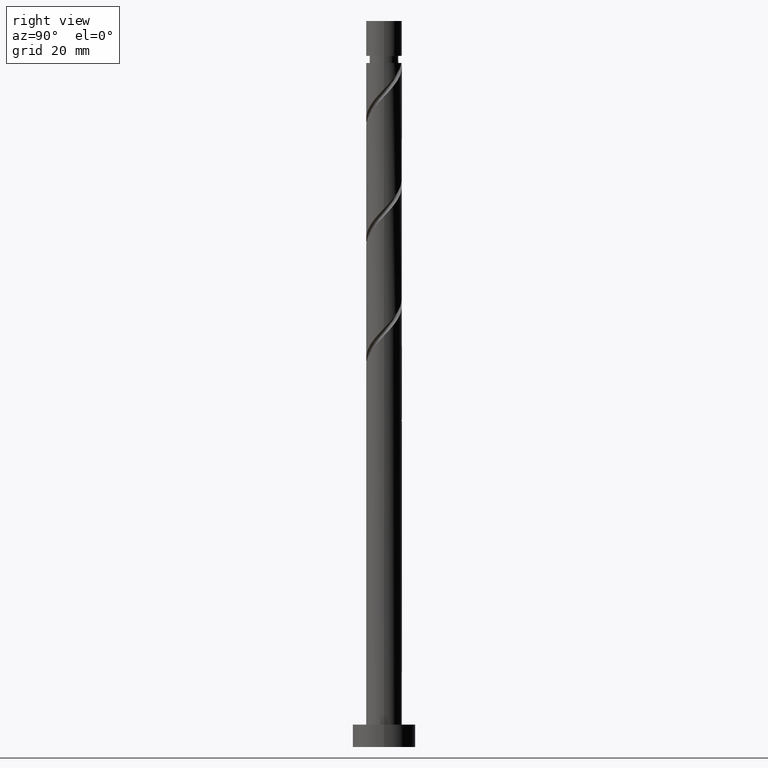
[diagram: clean part render]
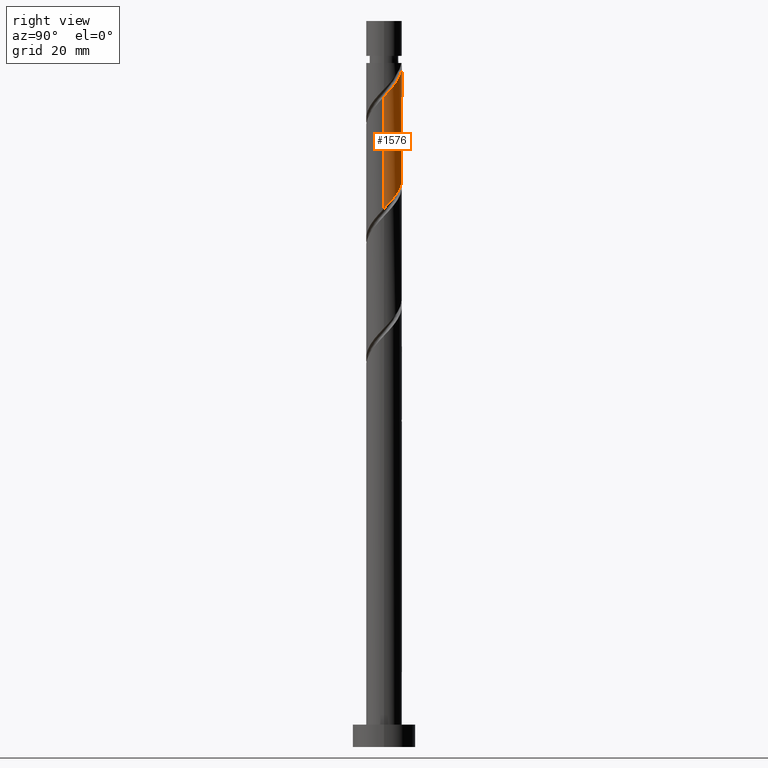
[diagram: same view with one face highlighted and labeled with its STEP entity id]
A machine part, right view. The second image highlights one B-rep face of the part: STEP entity #1576.
In plain terms, the highlighted cylindrical surface (edge-blend (fillet) strip) has radius 4 mm, axis along (-0, -0, -1).
Its self-contained STEP definition (entity closure, byte-faithful):
#4 = CARTESIAN_POINT ( 'NONE',  ( 1.868138386609203838, 3.536956172823910727, 124.7445681667448127 ) ) ;
#12 = VECTOR ( 'NONE', #80, 1000.000000000000000 ) ;
#32 = CARTESIAN_POINT ( 'NONE',  ( -1.985696539029934815, 3.519625607940455758, 128.9869924091690621 ) ) ;
#42 = CARTESIAN_POINT ( 'NONE',  ( -1.449682647155072557, 3.728058505782528620, 128.3809318031084672 ) ) ;
#46 = DIRECTION ( 'NONE',  ( -0.000000000000000000, -0.000000000000000000, -1.000000000000000000 ) ) ;
#57 = FACE_OUTER_BOUND ( 'NONE', #961, .T. ) ;
#80 = DIRECTION ( 'NONE',  ( -0.000000000000000000, -0.000000000000000000, -1.000000000000000000 ) ) ;
#126 = CARTESIAN_POINT ( 'NONE',  ( 2.788941361696811949, 2.867369191613931445, 123.5324469546236088 ) ) ;
#155 = CARTESIAN_POINT ( 'NONE',  ( -0.7959899496852959055, 3.920000000000002593, 152.6233560455327165 ) ) ;
#172 = CARTESIAN_POINT ( 'NONE',  ( -4.000000000000000888, 0.1151021060952892028, 133.3507125201153656 ) ) ;
#177 =( BOUNDED_CURVE ( )  B_SPLINE_CURVE ( 2, ( #581, #172, #1598, #963, #844, #591, #460, #1416, #760, #32, #42, #552, #980, #923, #540, #1157, #4, #258, #126, #551, #659, #1067, #680, #1089, #312 ),
 .UNSPECIFIED., .F., .T. ) 
 B_SPLINE_CURVE_WITH_KNOTS ( ( 3, 2, 2, 2, 2, 2, 2, 2, 2, 2, 2, 2, 3 ),
 ( 0.4295252162417513286, 0.4318181818181818232, 0.4431818181818181768, 0.4545454545454545303, 0.4659090909090908839, 0.4772727272727272929, 0.4886363636363636465, 0.5000000000000000000, 0.5113636363636363535, 0.5227272727272727071, 0.5340909090909090606, 0.5454545454545454142, 0.5545252162417512176 ),
 .UNSPECIFIED. ) 
 CURVE ( )  GEOMETRIC_REPRESENTATION_ITEM ( )  RATIONAL_B_SPLINE_CURVE ( ( 0.9061101570135567940, 0.9072237824201390133, 0.9090909090909164991, 0.8998376744372188485, 0.9090909090909164991, 0.8998376744372188485, 0.9090909090909164991, 0.8998376744372188485, 0.9090909090909164991, 0.8998376744372188485, 0.9090909090909164991, 0.8998376744372188485, 0.9090909090909164991, 0.8998376744372188485, 0.9090909090909164991, 0.8998376744372188485, 0.9090909090909164991, 0.8998376744372188485, 0.9090909090909164991, 0.8998376744372188485, 0.9090909090909164991, 0.8998376744372188485, 0.9090909090909164991, 0.9017048011079963343, 0.9061101570135567940 ) ) 
 REPRESENTATION_ITEM ( '' )  );
#221 = VERTEX_POINT ( 'NONE', #1068 ) ;
#257 = CARTESIAN_POINT ( 'NONE',  ( 3.766818871216639053, 1.345762085751509574, 146.5627499849266542 ) ) ;
#258 = CARTESIAN_POINT ( 'NONE',  ( 2.376675911072815062, 3.268358422650716744, 124.1385075606841895 ) ) ;
#266 = ORIENTED_EDGE ( 'NONE', *, *, #1626, .F. ) ;
#312 = CARTESIAN_POINT ( 'NONE',  ( 4.000000000000000888, -4.606700776676913527E-15, 120.1394771915002480 ) ) ;
#387 = ORIENTED_EDGE ( 'NONE', *, *, #895, .T. ) ;
#400 = CARTESIAN_POINT ( 'NONE',  ( 0.000000000000000000, 0.000000000000000000, 162.0000000000000000 ) ) ;
#404 = CARTESIAN_POINT ( 'NONE',  ( 4.000000000000005329, 0.1151021060952975711, 145.2293329042833818 ) ) ;
#415 = CARTESIAN_POINT ( 'NONE',  ( -0.2323790372250058855, 4.034446077002901809, 152.0172954394721501 ) ) ;
#448 = ORIENTED_EDGE ( 'NONE', *, *, #1382, .F. ) ;
#460 = CARTESIAN_POINT ( 'NONE',  ( -3.235091246491823558, 2.352484777181774511, 130.8051742273508751 ) ) ;
#524 = DIRECTION ( 'NONE',  ( -1.000000000000000000, 0.000000000000000000, 0.000000000000000000 ) ) ;
#540 = CARTESIAN_POINT ( 'NONE',  ( 0.7959899496852975709, 3.919999999999999929, 125.9566893788660309 ) ) ;
#551 = CARTESIAN_POINT ( 'NONE',  ( 3.201206812320808837, 2.466379960577145702, 122.9263863485629997 ) ) ;
#552 = CARTESIAN_POINT ( 'NONE',  ( -0.9136687552802111867, 3.936491403624602814, 127.7748711970478297 ) ) ;
#570 = LINE ( 'NONE', #1500, #12 ) ;
#578 = ORIENTED_EDGE ( 'NONE', *, *, #847, .F. ) ;
#581 = CARTESIAN_POINT ( 'NONE',  ( -4.000000000000000000, -1.824732125826569623E-15, 133.4728105248335908 ) ) ;
#591 = CARTESIAN_POINT ( 'NONE',  ( -3.573327494404164639, 1.887348876843108147, 131.4112348334114984 ) ) ;
#659 = CARTESIAN_POINT ( 'NONE',  ( 3.483800894132676351, 1.965485011400587290, 122.3203257425023764 ) ) ;
#680 = CARTESIAN_POINT ( 'NONE',  ( 3.896423597087600665, 0.9043689247530143360, 121.1082045303811725 ) ) ;
#709 = ORIENTED_EDGE ( 'NONE', *, *, #746, .T. ) ;
#746 = EDGE_CURVE ( 'NONE', #221, #1118, #1499, .T. ) ;
#760 = CARTESIAN_POINT ( 'NONE',  ( -2.441275768804708868, 3.168623142730448095, 129.5930530152296569 ) ) ;
#763 =( BOUNDED_CURVE ( )  B_SPLINE_CURVE ( 2, ( #1049, #404, #926, #1280, #257, #1288, #1017, #1363, #820, #1314, #1186, #1563, #1306, #415, #155 ),
 .UNSPECIFIED., .F., .T. ) 
 B_SPLINE_CURVE_WITH_KNOTS ( ( 3, 2, 2, 2, 2, 2, 2, 3 ),
 ( 0.6795252162417515507, 0.6818181818181818787, 0.6931818181818181213, 0.7045454545454545858, 0.7159090909090909394, 0.7272727272727274039, 0.7386363636363637575, 0.7500000000000001110 ),
 .UNSPECIFIED. ) 
 CURVE ( )  GEOMETRIC_REPRESENTATION_ITEM ( )  RATIONAL_B_SPLINE_CURVE ( ( 0.9061101570135624561, 0.9072237824201445644, 0.9090909090909219392, 0.8998376744372241776, 0.9090909090909219392, 0.8998376744372241776, 0.9090909090909219392, 0.8998376744372241776, 0.9090909090909219392, 0.8998376744372241776, 0.9090909090909219392, 0.8998376744372241776, 0.9090909090909219392, 0.8998376744372240665, 0.9090909090909220502 ) ) 
 REPRESENTATION_ITEM ( '' )  );
#800 = DIRECTION ( 'NONE',  ( -0.000000000000000000, -0.000000000000000000, -1.000000000000000000 ) ) ;
#820 = CARTESIAN_POINT ( 'NONE',  ( 2.441275768804711976, 3.168623142730452091, 148.9869924091690905 ) ) ;
#844 = CARTESIAN_POINT ( 'NONE',  ( -3.766818871216632836, 1.345762085751508463, 132.0172954394720932 ) ) ;
#847 = EDGE_CURVE ( 'NONE', #221, #1564, #763, .T. ) ;
#883 = CIRCLE ( 'NONE', #1353, 3.999999999999993339 ) ;
#894 = CYLINDRICAL_SURFACE ( 'NONE', #958, 4.000000000000000000 ) ;
#895 = EDGE_CURVE ( 'NONE', #1529, #1564, #883, .T. ) ;
#923 = CARTESIAN_POINT ( 'NONE',  ( 0.2323790372250010838, 4.034446077002895592, 126.5627499849266400 ) ) ;
#926 = CARTESIAN_POINT ( 'NONE',  ( 3.993381233129885466, 0.2300137536889530487, 145.3506287728054076 ) ) ;
#927 = DIRECTION ( 'NONE',  ( -1.000000000000000000, 0.000000000000000000, 0.000000000000000000 ) ) ;
#958 = AXIS2_PLACEMENT_3D ( 'NONE', #400, #800, #524 ) ;
#961 = EDGE_LOOP ( 'NONE', ( #578, #709, #448, #266, #387 ) ) ;
#963 = CARTESIAN_POINT ( 'NONE',  ( -3.960310248029102365, 0.8041752946599105556, 132.6233560455327449 ) ) ;
#978 = CARTESIAN_POINT ( 'NONE',  ( -4.000000000000000000, -1.824732125826569623E-15, 133.4728105248335908 ) ) ;
#980 = CARTESIAN_POINT ( 'NONE',  ( -0.3406448590276049404, 3.985468740313750313, 127.1688105909871922 ) ) ;
#1017 = CARTESIAN_POINT ( 'NONE',  ( 3.235091246491828887, 2.352484777181775399, 147.7748711970478723 ) ) ;
#1049 = CARTESIAN_POINT ( 'NONE',  ( 4.000000000000005329, 2.557616340297881178E-15, 145.1072348995651282 ) ) ;
#1066 = CARTESIAN_POINT ( 'NONE',  ( -0.7959899496852959055, 3.920000000000002593, 152.6233560455327165 ) ) ;
#1067 = CARTESIAN_POINT ( 'NONE',  ( 3.766394975944543866, 1.464590062224026212, 121.7142651364417958 ) ) ;
#1068 = CARTESIAN_POINT ( 'NONE',  ( 4.000000000000005329, 2.557616340297881178E-15, 145.1072348995651282 ) ) ;
#1089 = CARTESIAN_POINT ( 'NONE',  ( 4.000000000000000000, 0.4581157095404935209, 120.6254371444715758 ) ) ;
#1094 = DIRECTION ( 'NONE',  ( -0.000000000000000000, -0.000000000000000000, -1.000000000000000000 ) ) ;
#1118 = VERTEX_POINT ( 'NONE', #1506 ) ;
#1157 = CARTESIAN_POINT ( 'NONE',  ( 1.359600862145592615, 3.805553922997103378, 125.3506287728054218 ) ) ;
#1186 = CARTESIAN_POINT ( 'NONE',  ( 1.449682647155074333, 3.728058505782534393, 150.1991136212903086 ) ) ;
#1218 = VECTOR ( 'NONE', #1094, 1000.000000000000000 ) ;
#1245 = CARTESIAN_POINT ( 'NONE',  ( 4.000000000000000000, 4.898587196589412829E-16, 162.0000000000000000 ) ) ;
#1280 = CARTESIAN_POINT ( 'NONE',  ( 3.960310248029106805, 0.8041752946599101115, 145.9566893788660309 ) ) ;
#1288 = CARTESIAN_POINT ( 'NONE',  ( 3.573327494404170412, 1.887348876843108370, 147.1688105909872490 ) ) ;
#1306 = CARTESIAN_POINT ( 'NONE',  ( 0.3406448590276063282, 3.985468740313755642, 151.4112348334114699 ) ) ;
#1314 = CARTESIAN_POINT ( 'NONE',  ( 1.985696539029936369, 3.519625607940460643, 149.5930530152297138 ) ) ;
#1353 = AXIS2_PLACEMENT_3D ( 'NONE', #1580, #46, #927 ) ;
#1363 = CARTESIAN_POINT ( 'NONE',  ( 2.896854998579489138, 2.817620677520440875, 148.3809318031084672 ) ) ;
#1382 = EDGE_CURVE ( 'NONE', #1655, #1118, #177, .T. ) ;
#1416 = CARTESIAN_POINT ( 'NONE',  ( -2.896854998579482920, 2.817620677520439987, 130.1991136212902802 ) ) ;
#1499 = LINE ( 'NONE', #1245, #1218 ) ;
#1500 = CARTESIAN_POINT ( 'NONE',  ( -4.000000000000000000, 0.000000000000000000, 162.0000000000000000 ) ) ;
#1506 = CARTESIAN_POINT ( 'NONE',  ( 4.000000000000000888, -4.606700776676913527E-15, 120.1394771915002480 ) ) ;
#1529 = VERTEX_POINT ( 'NONE', #1593 ) ;
#1563 = CARTESIAN_POINT ( 'NONE',  ( 0.9136687552802131851, 3.936491403624606811, 150.8051742273509035 ) ) ;
#1564 = VERTEX_POINT ( 'NONE', #1066 ) ;
#1576 = ADVANCED_FACE ( 'NONE', ( #57 ), #894, .T. ) ;
#1580 = CARTESIAN_POINT ( 'NONE',  ( 0.000000000000000000, 0.000000000000000000, 152.6233560455327165 ) ) ;
#1593 = CARTESIAN_POINT ( 'NONE',  ( -3.999999999999993339, 0.000000000000000000, 152.6233560455327165 ) ) ;
#1598 = CARTESIAN_POINT ( 'NONE',  ( -3.993381233129879693, 0.2300137536889541867, 133.2294166515933114 ) ) ;
#1626 = EDGE_CURVE ( 'NONE', #1529, #1655, #570, .T. ) ;
#1655 = VERTEX_POINT ( 'NONE', #978 ) ;